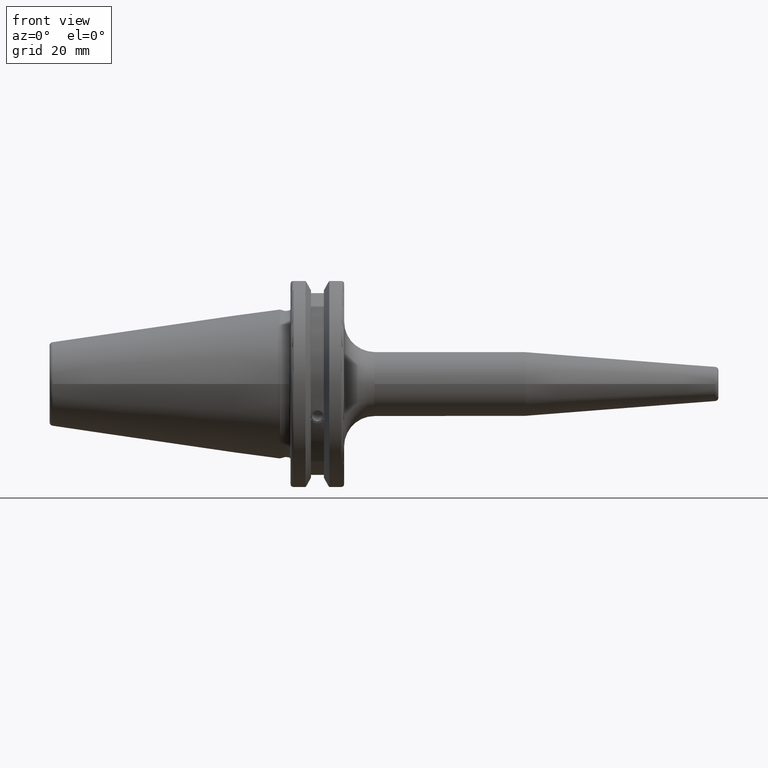
[diagram: clean part render]
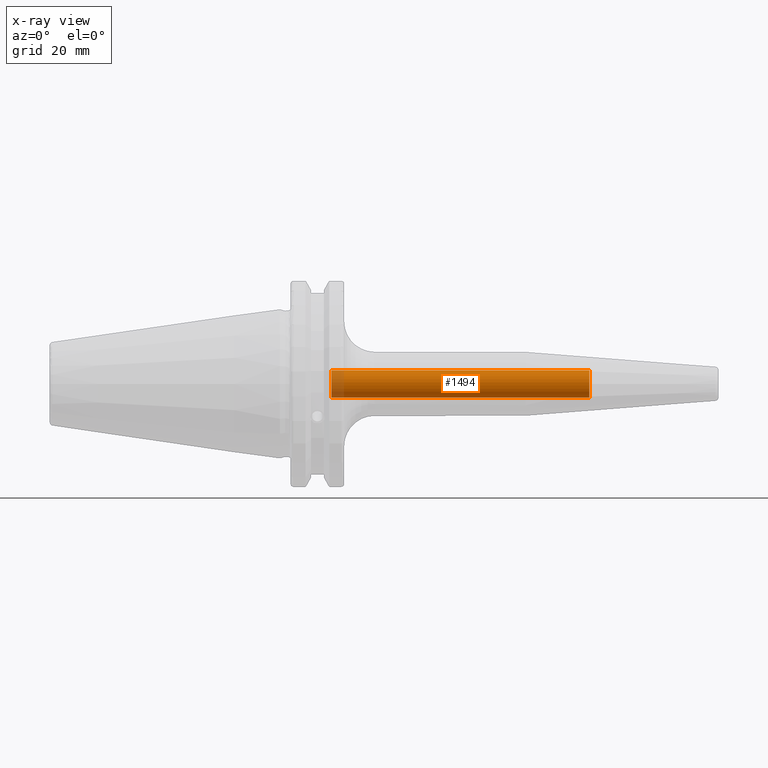
[diagram: x-ray — body ghosted, one internal face saturated and labeled with its STEP entity id]
A machine part, front view, then the same camera in x-ray: the body is ghosted and one INTERNAL B-rep face — a face not visible from any outside direction — is saturated and labeled: STEP entity #1494.
In plain terms, the highlighted cylindrical surface (bore or boss wall) has radius 4 mm, axis along (-1, 0, 0).
Its self-contained STEP definition (entity closure, byte-faithful):
#82=CYLINDRICAL_SURFACE('',#1621,4.);
#173=LINE('',#2298,#269);
#269=VECTOR('',#1848,4.);
#374=FACE_OUTER_BOUND('',#463,.T.);
#463=EDGE_LOOP('',(#1063,#1064,#1065,#1066));
#568=CIRCLE('',#1620,4.);
#569=CIRCLE('',#1622,4.);
#649=VERTEX_POINT('',#2292);
#650=VERTEX_POINT('',#2296);
#808=EDGE_CURVE('',#649,#649,#568,.T.);
#810=EDGE_CURVE('',#650,#650,#569,.T.);
#811=EDGE_CURVE('',#650,#649,#173,.T.);
#1063=ORIENTED_EDGE('',*,*,#810,.F.);
#1064=ORIENTED_EDGE('',*,*,#811,.T.);
#1065=ORIENTED_EDGE('',*,*,#808,.F.);
#1066=ORIENTED_EDGE('',*,*,#811,.F.);
#1494=ADVANCED_FACE('',(#374),#82,.F.);
#1620=AXIS2_PLACEMENT_3D('',#2293,#1841,#1842);
#1621=AXIS2_PLACEMENT_3D('',#2295,#1844,#1845);
#1622=AXIS2_PLACEMENT_3D('',#2297,#1846,#1847);
#1841=DIRECTION('center_axis',(-1.,0.,0.));
#1842=DIRECTION('ref_axis',(0.,0.,1.));
#1844=DIRECTION('center_axis',(-1.,0.,0.));
#1845=DIRECTION('ref_axis',(0.,0.,1.));
#1846=DIRECTION('center_axis',(1.,0.,0.));
#1847=DIRECTION('ref_axis',(0.,0.,1.));
#1848=DIRECTION('',(1.,0.,0.));
#2292=CARTESIAN_POINT('',(91.75,-4.89858719658942E-16,-4.00000000000001));
#2293=CARTESIAN_POINT('Origin',(91.75,0.,0.));
#2295=CARTESIAN_POINT('Origin',(11.75,0.,0.));
#2296=CARTESIAN_POINT('',(15.2521515475689,4.89858719658941E-16,-4.));
#2297=CARTESIAN_POINT('Origin',(15.2521515475689,0.,0.));
#2298=CARTESIAN_POINT('',(11.75,-4.89858719658941E-16,-4.));